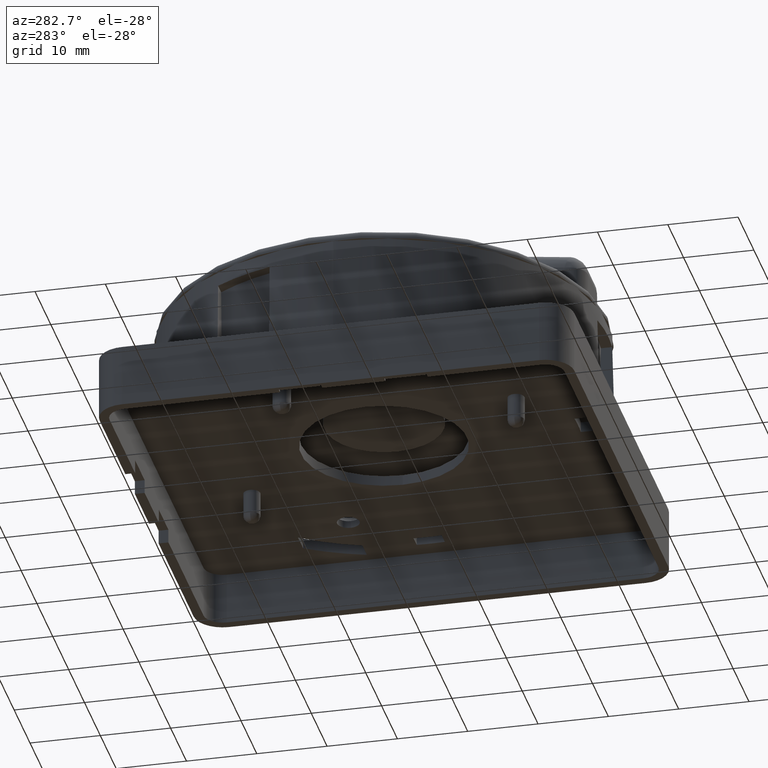
[diagram: clean part render]
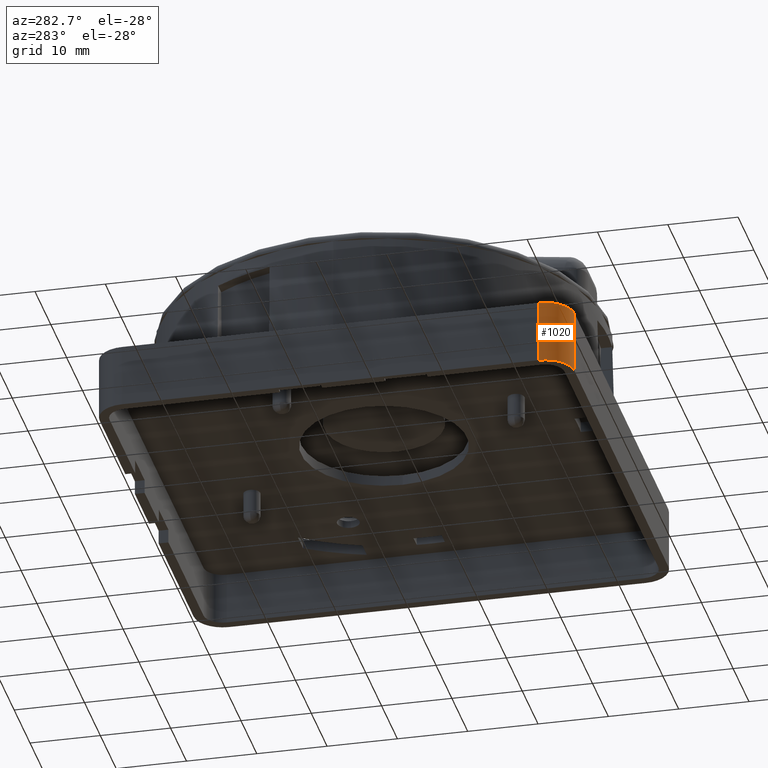
[diagram: same view with one face highlighted and labeled with its STEP entity id]
A machine part, auxiliary view. The second image highlights one B-rep face of the part: STEP entity #1020.
In plain terms, the highlighted cylindrical surface (edge-blend (fillet) strip) has radius 4.1 mm, axis along (0, 0, -1).
Its self-contained STEP definition (entity closure, byte-faithful):
#279=CARTESIAN_POINT('',(82.038074723722204,82.764225820017913,50.0));
#280=VERTEX_POINT('',#279);
#287=CARTESIAN_POINT('',(77.9380742381462,86.864226305594087,49.999999999999801));
#288=VERTEX_POINT('',#287);
#289=CARTESIAN_POINT('',(82.038074723722318,86.864226305594087,49.999999999999801));
#290=DIRECTION('',(0.0,0.0,-1.0));
#291=DIRECTION('',(-1.0,0.0,0.0));
#292=AXIS2_PLACEMENT_3D('',#289,#290,#291);
#293=CIRCLE('',#292,4.10000048557613);
#294=EDGE_CURVE('',#280,#288,#293,.T.);
#979=CARTESIAN_POINT('',(82.038074723722204,82.764225820017913,59.0));
#980=VERTEX_POINT('',#979);
#987=CARTESIAN_POINT('',(82.038074723722204,82.764225820017913,59.0));
#988=DIRECTION('',(0.0,0.0,-1.0));
#989=VECTOR('',#988,9.0);
#990=LINE('',#987,#989);
#991=EDGE_CURVE('',#980,#280,#990,.T.);
#996=CARTESIAN_POINT('',(82.038074723722318,86.864226305594087,58.999999999999801));
#997=DIRECTION('',(0.0,0.0,-1.0));
#998=DIRECTION('',(-1.0,0.0,0.0));
#999=AXIS2_PLACEMENT_3D('',#996,#997,#998);
#1000=CYLINDRICAL_SURFACE('',#999,4.10000048557613);
#1001=ORIENTED_EDGE('',*,*,#294,.F.);
#1002=ORIENTED_EDGE('',*,*,#991,.F.);
#1003=CARTESIAN_POINT('',(77.9380742381462,86.864226305594087,58.999999999999801));
#1004=VERTEX_POINT('',#1003);
#1005=CARTESIAN_POINT('',(82.038074723722318,86.864226305594087,58.999999999999801));
#1006=DIRECTION('',(0.0,0.0,-1.0));
#1007=DIRECTION('',(-1.0,0.0,0.0));
#1008=AXIS2_PLACEMENT_3D('',#1005,#1006,#1007);
#1009=CIRCLE('',#1008,4.10000048557613);
#1010=EDGE_CURVE('',#980,#1004,#1009,.T.);
#1011=ORIENTED_EDGE('',*,*,#1010,.T.);
#1012=CARTESIAN_POINT('',(77.9380742381462,86.864226305594087,58.999999999999801));
#1013=DIRECTION('',(0.0,0.0,-1.0));
#1014=VECTOR('',#1013,8.999999999999993);
#1015=LINE('',#1012,#1014);
#1016=EDGE_CURVE('',#1004,#288,#1015,.T.);
#1017=ORIENTED_EDGE('',*,*,#1016,.T.);
#1018=EDGE_LOOP('',(#1001,#1002,#1011,#1017));
#1019=FACE_OUTER_BOUND('',#1018,.T.);
#1020=ADVANCED_FACE('',(#1019),#1000,.T.);